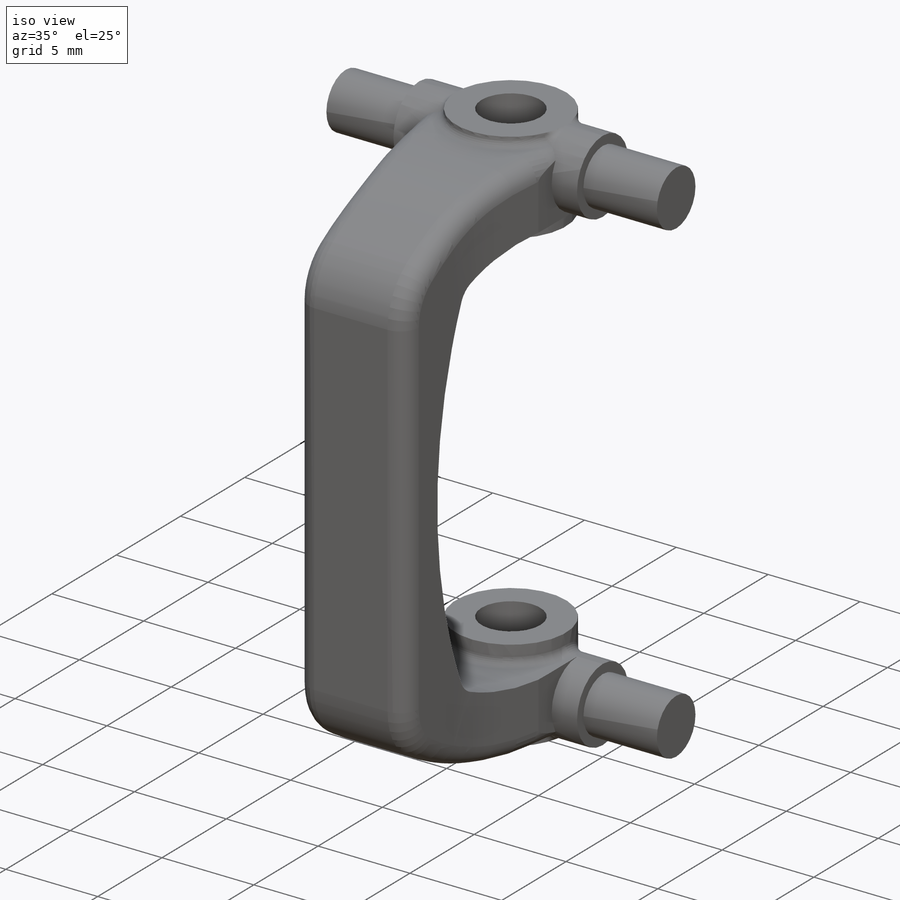
[diagram: iso view]
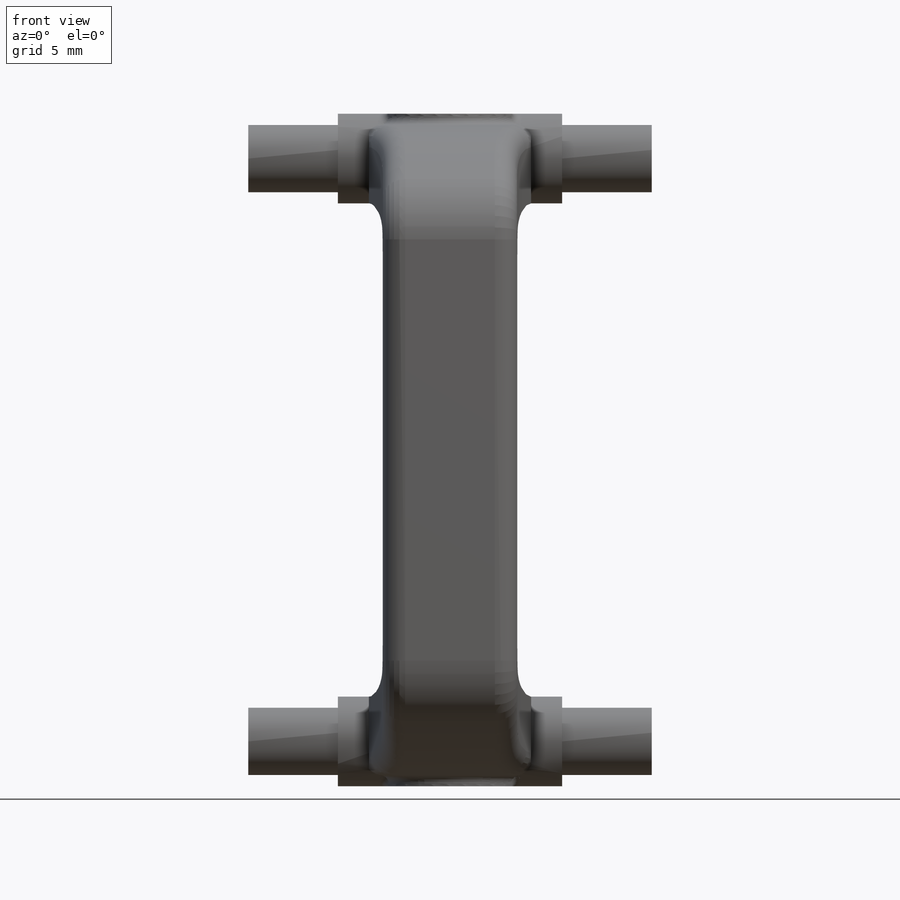
[diagram: front view]
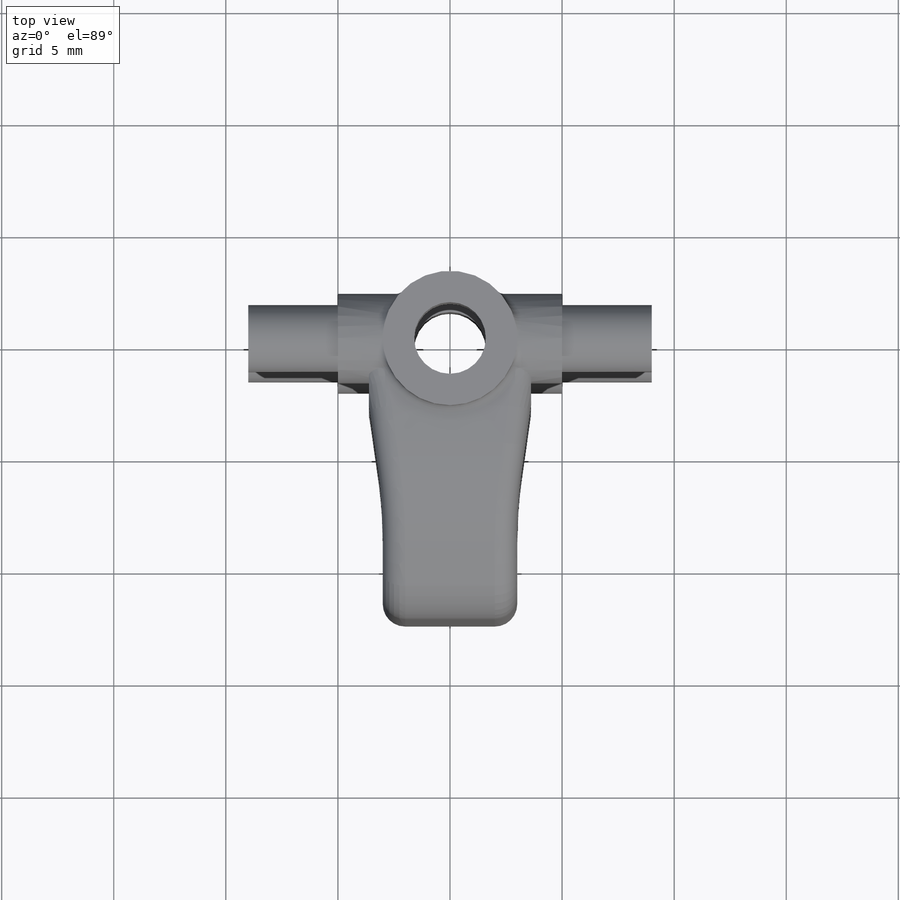
[diagram: top view]
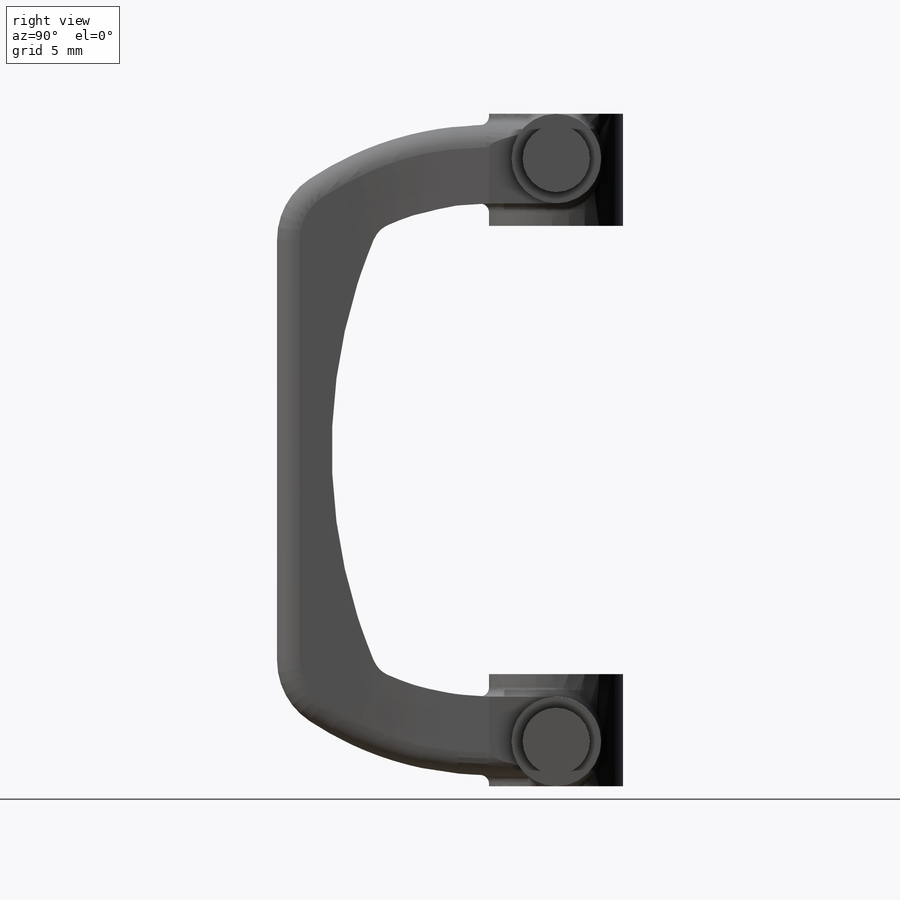
[diagram: right view]
SOLIDWORKS PART (.sldprt)
format: sldprt  version: not decoded by parser v0  size: 604,160 bytes
history: native  units: mm
features: sketch x4, extrude x3, fillet x3, chamfer x2, material x1, plane x1, revolve x1, mirror x1 (+11 scaffold rows collapsed)
feature tree (27):
  scaffold x11  (default folders/planes/origin — collapsed)
  material  "ABS"
  plane  "Plane1"  Offset=13mm
  sketch  "Sketch1"  dims[c1.D1=3.2mm c1.D2=3.0mm c1.D3=4.0mm c1.D4=3.0mm c1.D5=6.0mm c1.D6=4.0mm c2.D5=10.0mm]
  revolve  "Revolve2"  Angle=360deg
  extrude  "Boss-Extrude1"  [1 undecoded]
  sketch  "Sketch1<5>"  dims[D1=2.0mm D2=3.0mm]
  extrude  "Boss-Extrude4"  [1 undecoded]
  sketch  "Sketch1<6>"  dims[D1=1.5mm D2=2.0mm]
  mirror  "Mirror2"
  sketch  "Sketch2"  dims[D1=24.5mm D2=2.0mm]
  extrude  "Boss-Extrude3"  Depth=3mm
  chamfer  "Chamfer5"  Distance=4.3mm Angle=8deg
  chamfer  "Chamfer6"  Distance=4.3mm Angle=8deg
  fillet  "Fillet9"  Radius=0.4mm
  fillet  "Fillet10"  Radius=20mm
  fillet  "Fillet11"  Radius=1mm
decode coverage: 11 of 14 modeling features carry decoded parameters
note: 2 parameter values undecoded
note: suppression state not decoded; provenance and decode notes live in map.json
